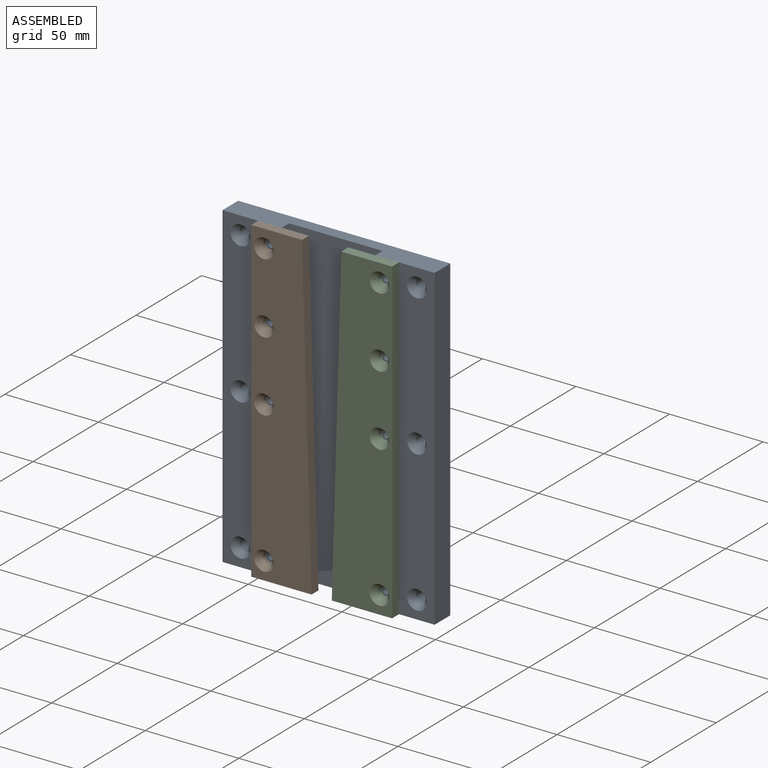
[diagram: assembled view]
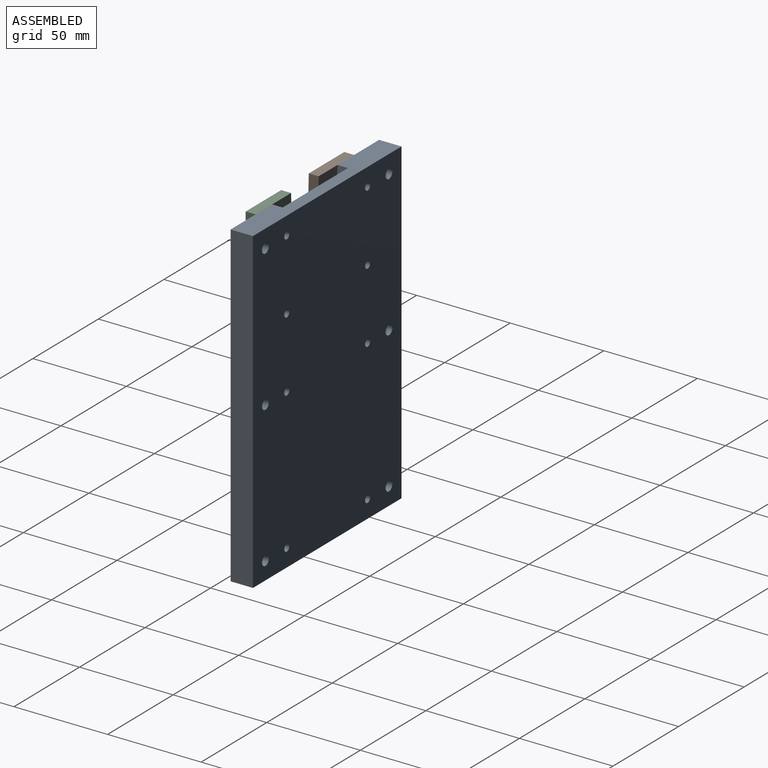
[diagram: assembled view, second angle]
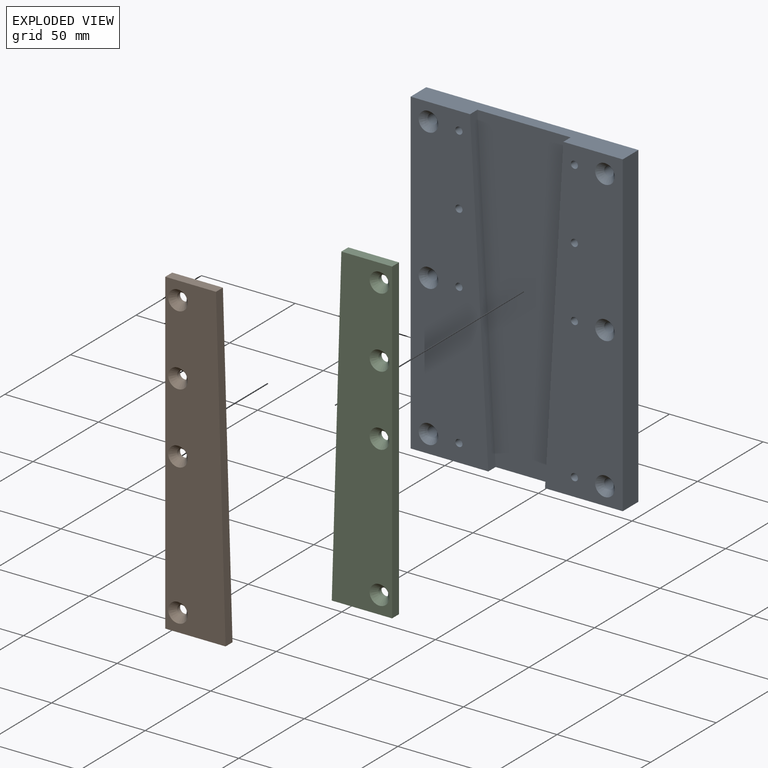
[diagram: exploded view]
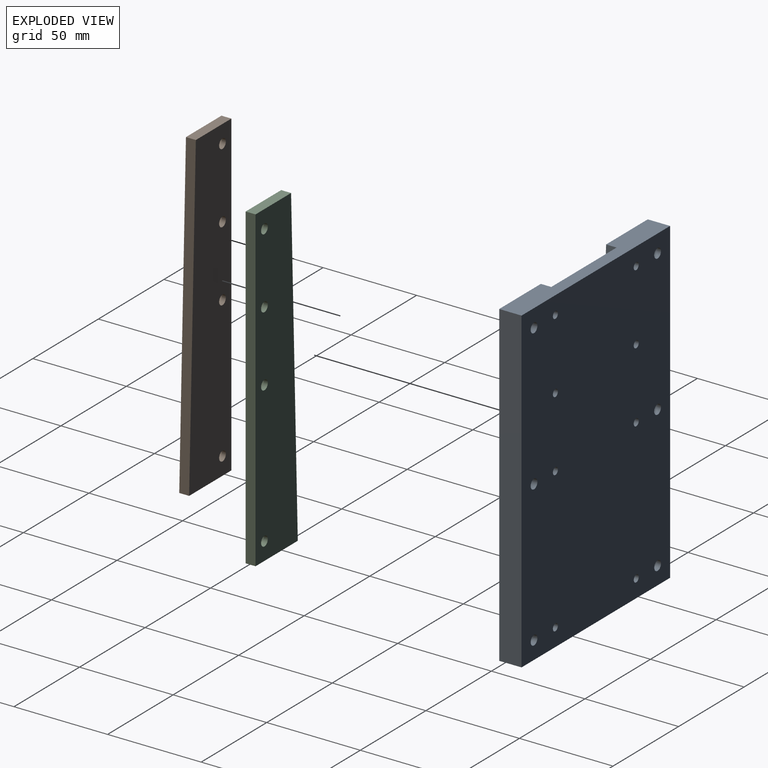
[diagram: exploded view, second angle]
ASSEMBLY  parts=3 mates=2
PART A: 30 faces, bbox 113.3x11.9x169.9 mm
  f0: plane 169.88x41.52mm, normal (0,-1,0), area 5921mm2, adj f1,f2,f3,f7,f17,f19,f21,f26
  f1: plane 113.34x11.94mm, normal (0,0,1), area 1074.5mm2, adj f0,f3,f4,f5,f6,f7,f8,f9
  f2: plane 113.34x11.94mm, normal (0,0,-1), area 1183.7mm2, adj f0,f3,f4,f5,f6,f7,f8,f9
  f3: plane 169.88x11.94mm, normal (1,0,0), area 2028mm2, adj f0,f1,f2,f5
  f4: plane 169.88x11.94mm, normal (-1,0,0), area 2028mm2, adj f1,f2,f5,f6
  f5: plane 169.88x113.34mm, normal (0,1,0), area 19039.3mm2, adj f1,f2,f3,f4,f10,f12,f14,f16
  f6: plane 169.88x41.52mm, normal (0,-1,0), area 5921mm2, adj f1,f2,f4,f8,f11,f13,f15,f22
  f7: plane 169.88x9.77mm, normal (-1,0,0.06), area 950.8mm2, adj f0,f1,f2,f9
  f8: plane 169.88x9.77mm, normal (1,0,0.06), area 950.8mm2, adj f1,f2,f6,f9
  f9: plane 169.88x49.84mm, normal (0,-1,0), area 6806.6mm2, adj f1,f2,f7,f8
  f10: cylinder r=2.55mm len=8.87mm, axis (0,-1,0), area 142.3mm2, adj f5,f11
  f11: cone r=2.55mm half-angle=41deg, axis (0,-1,0), area 99.3mm2, adj f6,f10
  f12: cylinder r=2.55mm len=8.87mm, axis (0,-1,0), area 142.3mm2, adj f5,f13
  f13: cone r=2.55mm half-angle=41deg, axis (0,-1,0), area 99.3mm2, adj f6,f12
  f14: cylinder r=2.55mm len=8.87mm, axis (0,-1,0), area 142.3mm2, adj f5,f15
  f15: cone r=2.55mm half-angle=41deg, axis (0,-1,0), area 99.3mm2, adj f6,f14
  f16: cylinder r=2.55mm len=8.87mm, axis (0,-1,0), area 142.3mm2, adj f5,f17
  f17: cone r=2.55mm half-angle=41deg, axis (0,-1,0), area 99.3mm2, adj f0,f16
  f18: cylinder r=2.55mm len=8.87mm, axis (0,-1,0), area 142.3mm2, adj f5,f19
  f19: cone r=2.55mm half-angle=41deg, axis (0,-1,0), area 99.3mm2, adj f0,f18
  f20: cylinder r=2.55mm len=8.87mm, axis (0,-1,0), area 142.3mm2, adj f5,f21
  f21: cone r=2.55mm half-angle=41deg, axis (0,-1,0), area 99.3mm2, adj f0,f20
  f22: cylinder r=1.9mm len=11.94mm, axis (0,-1,0), area 142.4mm2, adj f5,f6
  f23: cylinder r=1.9mm len=11.94mm, axis (0,-1,0), area 142.4mm2, adj f5,f6
  f24: cylinder r=1.9mm len=11.94mm, axis (0,-1,0), area 142.4mm2, adj f5,f6
  f25: cylinder r=1.9mm len=11.94mm, axis (0,-1,0), area 142.4mm2, adj f5,f6
  f26: cylinder r=1.9mm len=11.94mm, axis (0,-1,0), area 142.4mm2, adj f0,f5
  f27: cylinder r=1.9mm len=11.94mm, axis (0,-1,0), area 142.4mm2, adj f0,f5
  f28: cylinder r=1.9mm len=11.94mm, axis (0,-1,0), area 142.4mm2, adj f0,f5
  f29: cylinder r=1.9mm len=11.94mm, axis (0,-1,0), area 142.4mm2, adj f0,f5
PART B: 14 faces, bbox 32.2x5.3x169.9 mm
  f0: plane 32.22x5.28mm, normal (0,0,-1), area 170.2mm2, adj f1,f3,f4,f5
  f1: plane 169.88x5.28mm, normal (1,0,0.03), area 897.9mm2, adj f0,f2,f4,f5
  f2: plane 27.1x5.28mm, normal (0,0,1), area 143.2mm2, adj f1,f3,f4,f5
  f3: plane 169.88x5.28mm, normal (-1,0,0), area 897.5mm2, adj f0,f2,f4,f5
  f4: plane 169.88x32.22mm, normal (0,-1,0), area 4696.3mm2, adj f0,f1,f2,f3,f7,f9,f11,f13
  f5: plane 169.88x32.22mm, normal (0,1,0), area 4956.8mm2, adj f0,f1,f2,f3,f6,f8,f10,f12
  f6: cylinder r=2.55mm len=5.11mm, axis (0,-1,0), area 35.5mm2, adj f5,f7
  f7: cone r=2.55mm half-angle=41deg, axis (0,-1,0), area 99.3mm2, adj f4,f6
  f8: cylinder r=2.55mm len=5.11mm, axis (0,-1,0), area 35.5mm2, adj f5,f9
  f9: cone r=2.55mm half-angle=41deg, axis (0,-1,0), area 99.3mm2, adj f4,f8
  f10: cylinder r=2.55mm len=5.11mm, axis (0,-1,0), area 35.5mm2, adj f5,f11
  f11: cone r=2.55mm half-angle=41deg, axis (0,-1,0), area 99.3mm2, adj f4,f10
  f12: cylinder r=2.55mm len=5.11mm, axis (0,-1,0), area 35.5mm2, adj f5,f13
  f13: cone r=2.55mm half-angle=41deg, axis (0,-1,0), area 99.3mm2, adj f4,f12
PART C: 14 faces, bbox 32.2x5.3x169.9 mm
  f0: plane 27.1x5.28mm, normal (0,0,1), area 143.2mm2, adj f1,f3,f4,f5
  f1: plane 169.88x5.28mm, normal (-1,0,0.03), area 897.9mm2, adj f0,f2,f4,f5
  f2: plane 32.22x5.28mm, normal (0,0,-1), area 170.2mm2, adj f1,f3,f4,f5
  f3: plane 169.88x5.28mm, normal (1,0,0), area 897.5mm2, adj f0,f2,f4,f5
  f4: plane 169.88x32.22mm, normal (0,-1,0), area 4696.3mm2, adj f0,f1,f2,f3,f7,f9,f11,f13
  f5: plane 169.88x32.22mm, normal (0,1,0), area 4956.8mm2, adj f0,f1,f2,f3,f6,f8,f10,f12
  f6: cylinder r=2.55mm len=5.11mm, axis (0,-1,0), area 35.5mm2, adj f5,f7
  f7: cone r=2.55mm half-angle=41deg, axis (0,-1,0), area 99.3mm2, adj f4,f6
  f8: cylinder r=2.55mm len=5.11mm, axis (0,-1,0), area 35.5mm2, adj f5,f9
  f9: cone r=2.55mm half-angle=41deg, axis (0,-1,0), area 99.3mm2, adj f4,f8
  f10: cylinder r=2.55mm len=5.11mm, axis (0,-1,0), area 35.5mm2, adj f5,f11
  f11: cone r=2.55mm half-angle=41deg, axis (0,-1,0), area 99.3mm2, adj f4,f10
  f12: cylinder r=2.55mm len=5.11mm, axis (0,-1,0), area 35.5mm2, adj f5,f13
  f13: cone r=2.55mm half-angle=41deg, axis (0,-1,0), area 99.3mm2, adj f4,f12
PLACE A t=(-61.95,-43,7.14)mm
PLACE B t=(-61.95,-43,7.14)mm
PLACE C t=(-61.95,-43,7.14)mm
MATE fastened C.f12 <-> A.f27  axis (0,1,0) through (-31.11,-43,82.55)mm
MATE fastened B.f6 <-> A.f22  axis (0,1,0) through (-92.79,-43,82.55)mm
